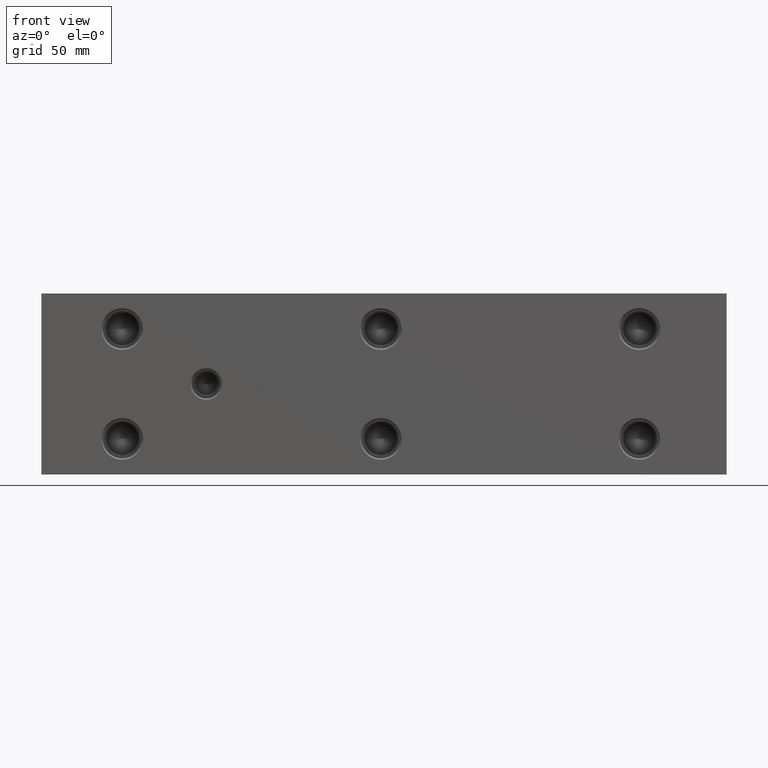
[diagram: clean part render]
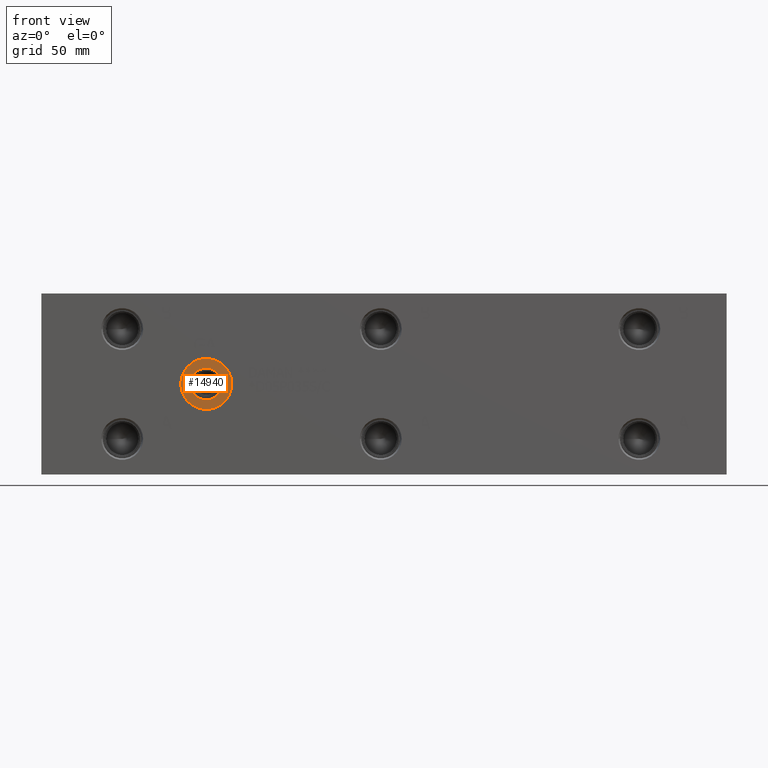
[diagram: same view with one face highlighted and labeled with its STEP entity id]
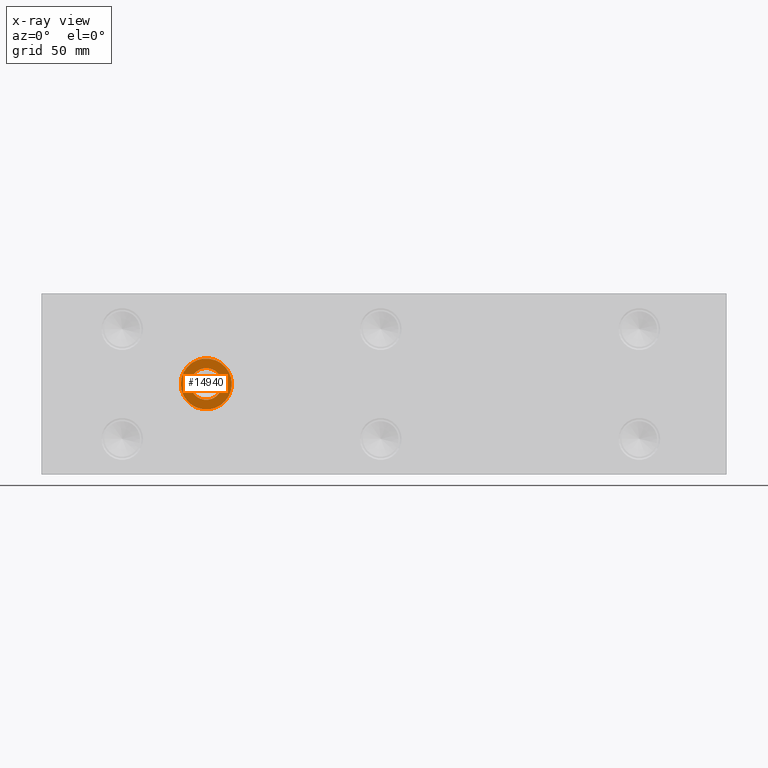
[diagram: x-ray of the same camera — body ghosted, the highlighted face saturated]
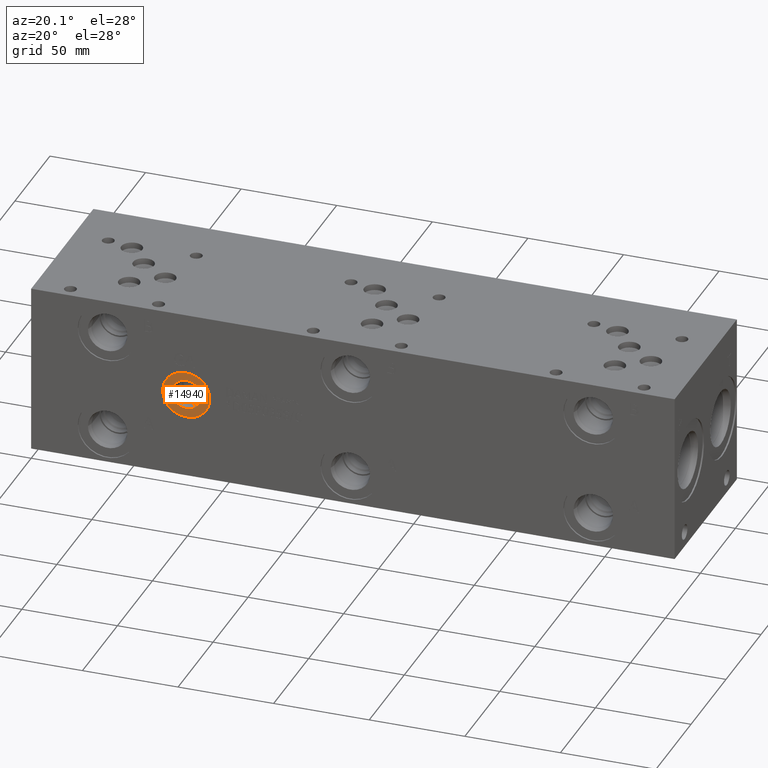
[diagram: same view with one face highlighted and labeled with its STEP entity id]
A machine part, front view. The second image highlights one B-rep face of the part: STEP entity #14940.
The next image is the same camera in x-ray: the body ghosted, the highlighted face saturated — about 0% of this face is hidden behind the body in this view.
A second angle (auxiliary view) of the same face is appended — the face is thin or edge-on in the first view.
In plain terms, the highlighted planar face has unit normal (0, 1, 0).
Its self-contained STEP definition (entity closure, byte-faithful):
#455=CIRCLE('',#15794,12.5095);
#456=CIRCLE('',#15795,12.5095);
#457=CIRCLE('',#15797,7.79780000000001);
#458=CIRCLE('',#15798,7.79780000000001);
#688=FACE_BOUND('',#2885,.T.);
#2013=FACE_OUTER_BOUND('',#2884,.T.);
#2884=EDGE_LOOP('',(#12877,#12878));
#2885=EDGE_LOOP('',(#12879,#12880));
#6879=VERTEX_POINT('',#25698);
#6880=VERTEX_POINT('',#25700);
#6881=VERTEX_POINT('',#25704);
#6882=VERTEX_POINT('',#25705);
#8928=EDGE_CURVE('',#6879,#6880,#455,.T.);
#8929=EDGE_CURVE('',#6880,#6879,#456,.T.);
#8930=EDGE_CURVE('',#6881,#6882,#457,.T.);
#8931=EDGE_CURVE('',#6882,#6881,#458,.T.);
#12877=ORIENTED_EDGE('',*,*,#8929,.F.);
#12878=ORIENTED_EDGE('',*,*,#8928,.F.);
#12879=ORIENTED_EDGE('',*,*,#8930,.T.);
#12880=ORIENTED_EDGE('',*,*,#8931,.T.);
#13693=PLANE('',#15796);
#14940=ADVANCED_FACE('',(#2013,#688),#13693,.F.);
#15794=AXIS2_PLACEMENT_3D('',#25701,#18766,#18767);
#15795=AXIS2_PLACEMENT_3D('',#25702,#18768,#18769);
#15796=AXIS2_PLACEMENT_3D('',#25703,#18770,#18771);
#15797=AXIS2_PLACEMENT_3D('',#25706,#18772,#18773);
#15798=AXIS2_PLACEMENT_3D('',#25707,#18774,#18775);
#18766=DIRECTION('center_axis',(0.,1.,0.));
#18767=DIRECTION('ref_axis',(1.,0.,0.));
#18768=DIRECTION('center_axis',(0.,1.,0.));
#18769=DIRECTION('ref_axis',(1.,0.,0.));
#18770=DIRECTION('center_axis',(0.,1.,0.));
#18771=DIRECTION('ref_axis',(0.,0.,1.));
#18772=DIRECTION('center_axis',(0.,1.,0.));
#18773=DIRECTION('ref_axis',(1.,0.,0.));
#18774=DIRECTION('center_axis',(0.,1.,0.));
#18775=DIRECTION('ref_axis',(1.,0.,0.));
#25698=CARTESIAN_POINT('',(68.4657,0.7874,44.45));
#25700=CARTESIAN_POINT('',(93.4847,0.7874,44.45));
#25701=CARTESIAN_POINT('Origin',(80.9752,0.7874,44.45));
#25702=CARTESIAN_POINT('Origin',(80.9752,0.7874,44.45));
#25703=CARTESIAN_POINT('Origin',(88.773,0.7874,44.45));
#25704=CARTESIAN_POINT('',(88.773,0.7874,44.45));
#25705=CARTESIAN_POINT('',(73.1774,0.787400000000002,44.45));
#25706=CARTESIAN_POINT('Origin',(80.9752,0.7874,44.45));
#25707=CARTESIAN_POINT('Origin',(80.9752,0.7874,44.45));